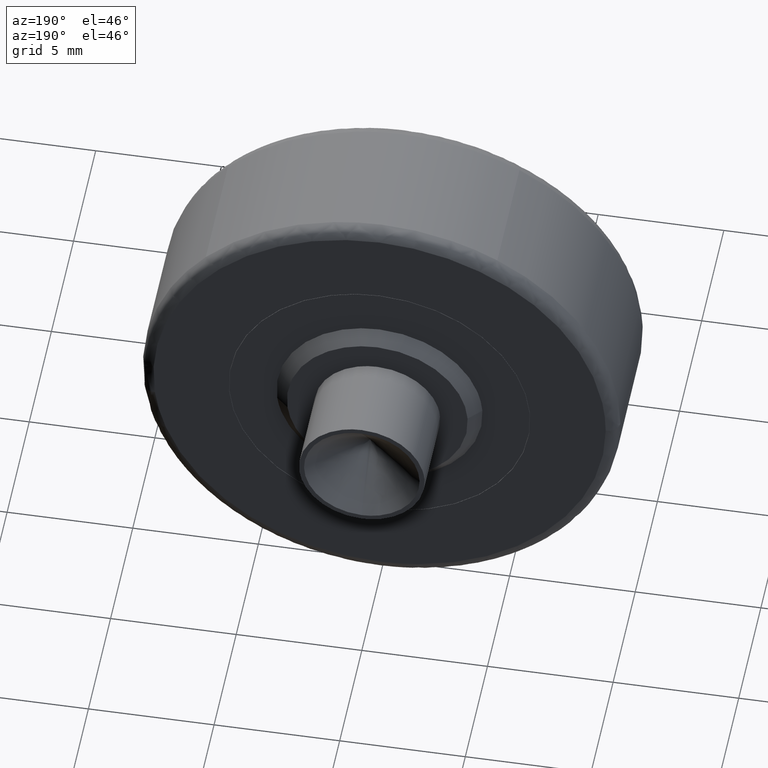
[diagram: clean part render]
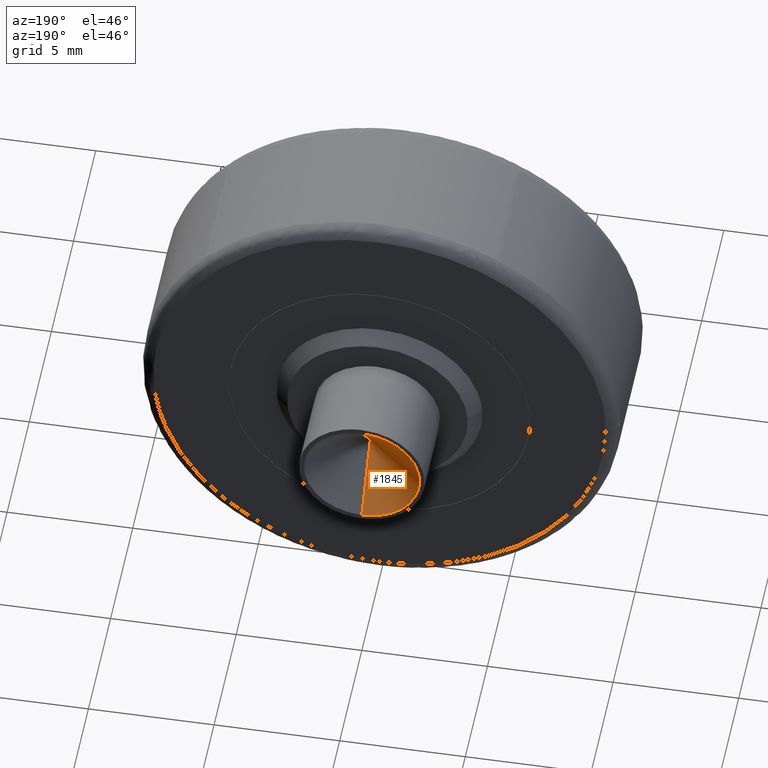
[diagram: same view with one face highlighted and labeled with its STEP entity id]
A machine part, auxiliary view. The second image highlights one B-rep face of the part: STEP entity #1845.
In plain terms, the highlighted face is a freeform B-spline surface patch.
Its self-contained STEP definition (entity closure, byte-faithful):
#1722=CARTESIAN_POINT('',(9.388649E-017,10.0,-2.300000000000000));
#1723=VERTEX_POINT('',#1722);
#1724=CARTESIAN_POINT('',(-9.388649E-017,10.0,2.300000000000000));
#1725=VERTEX_POINT('',#1724);
#1741=CARTESIAN_POINT('',(0.0,8.070070848292254,-1.773316E-016));
#1742=VERTEX_POINT('',#1741);
#1743=CARTESIAN_POINT('',(0.0,8.070070848292254,-1.773316E-016));
#1744=CARTESIAN_POINT('',(9.388649E-017,10.0,-2.300000000000000));
#1745=QUASI_UNIFORM_CURVE('',1,(#1743,#1744),.UNSPECIFIED.,.F.,.U.);
#1746=EDGE_CURVE('',#1742,#1723,#1745,.T.);
#1748=CARTESIAN_POINT('',(0.0,8.070070848292254,-1.773316E-016));
#1749=CARTESIAN_POINT('',(-9.388649E-017,10.0,2.300000000000000));
#1750=QUASI_UNIFORM_CURVE('',1,(#1748,#1749),.UNSPECIFIED.,.F.,.U.);
#1751=EDGE_CURVE('',#1742,#1725,#1750,.T.);
#1803=CARTESIAN_POINT('',(0.0,10.0,2.300000000000000));
#1804=CARTESIAN_POINT('',(-2.300000000000000,10.0,2.300000000000000));
#1805=CARTESIAN_POINT('',(-2.300000000000000,10.0,-1.773316E-016));
#1806=CARTESIAN_POINT('',(-2.300000000000000,10.0,-2.300000000000000));
#1807=CARTESIAN_POINT('',(0.0,10.0,-2.300000000000000));
#1815=(BOUNDED_CURVE()B_SPLINE_CURVE(2,(#1803,#1804,#1805,#1806,#1807),.UNSPECIFIED.,.F.,.U.)B_SPLINE_CURVE_WITH_KNOTS((3,2,3),(0.0,0.500000000000000,1.0),.UNSPECIFIED.)CURVE()GEOMETRIC_REPRESENTATION_ITEM()RATIONAL_B_SPLINE_CURVE((1.0,0.707106781186547,1.0,0.707106781186547,1.0))REPRESENTATION_ITEM(''));
#1816=EDGE_CURVE('',#1725,#1723,#1815,.T.);
#1822=CARTESIAN_POINT('',(0.0,8.070070848292254,-1.773316E-016));
#1823=CARTESIAN_POINT('',(0.061749784999007,10.049454434512510,2.358129151034530));
#1824=CARTESIAN_POINT('',(0.0,8.070070848292254,-1.773316E-016));
#1825=CARTESIAN_POINT('',(-2.423199847206850,10.049454434512512,2.423199847206856));
#1826=CARTESIAN_POINT('',(0.0,8.070070848292254,-1.773316E-016));
#1827=CARTESIAN_POINT('',(-2.358129151034531,10.049454434512510,-0.061749784999001));
#1828=CARTESIAN_POINT('',(0.0,8.070070848292254,-1.773316E-016));
#1829=CARTESIAN_POINT('',(-2.293058454862212,10.049454434512512,-2.546699417204857));
#1830=CARTESIAN_POINT('',(0.0,8.070070848292254,-1.773316E-016));
#1831=CARTESIAN_POINT('',(0.185080103128500,10.049454434512510,-2.351665682943093));
#1839=(BOUNDED_SURFACE()B_SPLINE_SURFACE(1,2,((#1822,#1824,#1826,#1828,#1830),(#1823,#1825,#1827,#1829,#1831)),.UNSPECIFIED.,.F.,.F.,.U.)B_SPLINE_SURFACE_WITH_KNOTS((2,2),(3,2,3),(0.0,1.0),(0.0,1.0,2.0),.UNSPECIFIED.)GEOMETRIC_REPRESENTATION_ITEM()RATIONAL_B_SPLINE_SURFACE(((1.0,0.688354575693754,1.0,0.688354575693754,1.0),(1.0,0.688354575693754,1.0,0.688354575693754,1.0)))REPRESENTATION_ITEM('')SURFACE());
#1840=ORIENTED_EDGE('',*,*,#1746,.T.);
#1841=ORIENTED_EDGE('',*,*,#1816,.F.);
#1842=ORIENTED_EDGE('',*,*,#1751,.F.);
#1843=EDGE_LOOP('',(#1840,#1841,#1842));
#1844=FACE_OUTER_BOUND('',#1843,.T.);
#1845=ADVANCED_FACE('',(#1844),#1839,.F.);